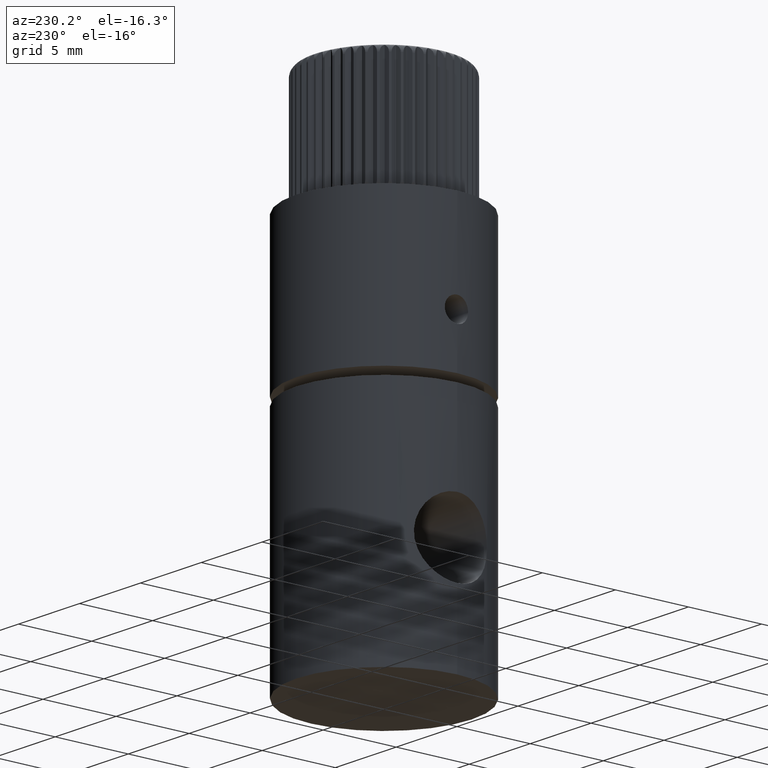
[diagram: clean part render]
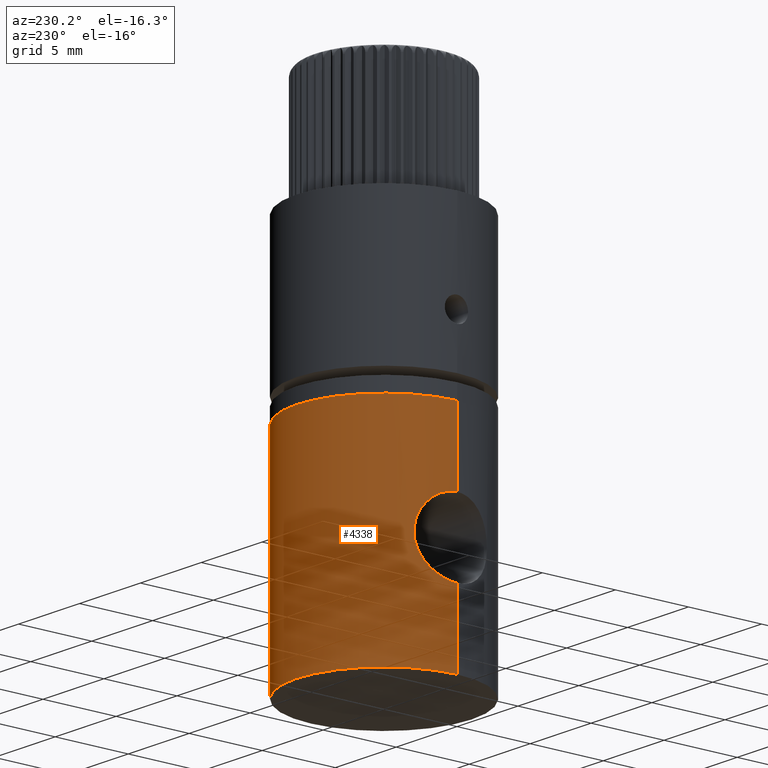
[diagram: same view with one face highlighted and labeled with its STEP entity id]
A machine part, auxiliary view. The second image highlights one B-rep face of the part: STEP entity #4338.
In plain terms, the highlighted cylindrical surface (partial cylindrical patch) has radius 6 mm, axis along (-0, -0, -1).
Its self-contained STEP definition (entity closure, byte-faithful):
#7 = CARTESIAN_POINT ( 'NONE',  ( 5.999999999999996400, 7.347880794884115800E-016, -1.657192075796718000 ) ) ;
#36 = CARTESIAN_POINT ( 'NONE',  ( 5.943261248370182800, 0.8281580363227785100, 6.068829633252090800 ) ) ;
#105 = CARTESIAN_POINT ( 'NONE',  ( 5.900657109441390900, 1.090090824528477700, 8.743319249763086300 ) ) ;
#141 = LINE ( 'NONE', #3012, #6430 ) ;
#252 = CARTESIAN_POINT ( 'NONE',  ( 5.999999999999994700, 7.347880794884114800E-016, 0.0000000000000000000 ) ) ;
#290 = CARTESIAN_POINT ( 'NONE',  ( 5.999999999999998200, 7.347880794884117800E-016, 15.00000000000000000 ) ) ;
#313 = B_SPLINE_CURVE_WITH_KNOTS ( 'NONE', 3,
 ( #3463, #4303, #4339, #1024, #1758, #912, #36, #6938, #2690, #2729, #878, #9519, #9435, #2770, #5282, #4383, #6021, #7805, #5245, #105, #4463, #2624, #6065, #6902, #1796, #10242, #8597, #3572 ),
 .UNSPECIFIED., .F., .F.,
 ( 4, 2, 2, 2, 2, 2, 2, 2, 2, 2, 2, 2, 2, 4 ),
 ( 3.834232119753134800E-019, 0.0003239837674726284400, 0.0006479675349452565500, 0.0009719513024178846600, 0.001295935069890512700, 0.001943902604835770600, 0.002591870139781028400, 0.002915853907253658400, 0.003239837674726286700, 0.003887805209671537300, 0.004211788977144161800, 0.004535772744616787900, 0.004859756512089413200, 0.005183740279562038500 ),
 .UNSPECIFIED. ) ;
#373 = ORIENTED_EDGE ( 'NONE', *, *, #5471, .T. ) ;
#435 = CARTESIAN_POINT ( 'NONE',  ( -5.491053255503498300, 2.418593444814171300, 6.846204008123888400 ) ) ;
#527 = LINE ( 'NONE', #7, #11069 ) ;
#626 = VECTOR ( 'NONE', #3232, 1000.000000000000000 ) ;
#674 = EDGE_CURVE ( 'NONE', #10750, #1963, #141, .T. ) ;
#711 = DIRECTION ( 'NONE',  ( -0.0000000000000000000, -0.0000000000000000000, -1.000000000000000000 ) ) ;
#866 = EDGE_LOOP ( 'NONE', ( #6188, #9746, #8705, #373, #2414, #5755, #9364, #6336 ) ) ;
#871 = VERTEX_POINT ( 'NONE', #7406 ) ;
#878 = CARTESIAN_POINT ( 'NONE',  ( 5.824969940036790000, 1.441176502100289800, 6.668351374473306100 ) ) ;
#912 = CARTESIAN_POINT ( 'NONE',  ( 5.955832276222059500, 0.7335766382202592000, 6.018092586818806200 ) ) ;
#1024 = CARTESIAN_POINT ( 'NONE',  ( 5.985590844583691200, 0.4288724603518551100, 5.903061823404143200 ) ) ;
#1045 = AXIS2_PLACEMENT_3D ( 'NONE', #1111, #3682, #9605 ) ;
#1111 = CARTESIAN_POINT ( 'NONE',  ( 0.0000000000000000000, 0.0000000000000000000, 0.0000000000000000000 ) ) ;
#1236 = VERTEX_POINT ( 'NONE', #8109 ) ;
#1317 = CARTESIAN_POINT ( 'NONE',  ( -5.698635342894789300, 1.881449780072504500, 5.845840146213110000 ) ) ;
#1440 = CIRCLE ( 'NONE', #7987, 5.999999999999998200 ) ;
#1758 = CARTESIAN_POINT ( 'NONE',  ( 5.977034848645474500, 0.5339730374359339400, 5.935053655656094700 ) ) ;
#1796 = CARTESIAN_POINT ( 'NONE',  ( 5.985495101559694200, 0.4303527999362896100, 9.096581482054336500 ) ) ;
#1876 = CARTESIAN_POINT ( 'NONE',  ( 5.999999999999996400, 7.347832891494713500E-016, 9.149999999999998600 ) ) ;
#1963 = VERTEX_POINT ( 'NONE', #1876 ) ;
#1980 = CARTESIAN_POINT ( 'NONE',  ( 0.0000000000000000000, 0.0000000000000000000, -1.657192075796718000 ) ) ;
#2081 = CARTESIAN_POINT ( 'NONE',  ( -5.993025678387394500, 0.3313286651165026600, 9.983390551656807300 ) ) ;
#2115 = CARTESIAN_POINT ( 'NONE',  ( -5.512296490036577600, 2.370510600221101600, 6.688919642907562100 ) ) ;
#2352 = AXIS2_PLACEMENT_3D ( 'NONE', #1980, #7839, #8789 ) ;
#2384 = LINE ( 'NONE', #8314, #626 ) ;
#2398 = LINE ( 'NONE', #5442, #4242 ) ;
#2414 = ORIENTED_EDGE ( 'NONE', *, *, #3271, .F. ) ;
#2624 = CARTESIAN_POINT ( 'NONE',  ( 5.943139395617381900, 0.8289971575666566000, 8.930657834807252700 ) ) ;
#2690 = CARTESIAN_POINT ( 'NONE',  ( 5.900400101234462000, 1.091435770856907400, 6.257932382857776000 ) ) ;
#2729 = CARTESIAN_POINT ( 'NONE',  ( 5.855373621616120500, 1.318489035789405200, 6.485139077340821100 ) ) ;
#2770 = CARTESIAN_POINT ( 'NONE',  ( 5.768651871271811300, 1.650047147960658400, 7.607488069543296500 ) ) ;
#2942 = CARTESIAN_POINT ( 'NONE',  ( -5.868189014291121300, 1.258442380232151200, 9.666296504189473300 ) ) ;
#2979 = CARTESIAN_POINT ( 'NONE',  ( -5.803710641115049600, 1.528475880810605100, 5.514995588957928500 ) ) ;
#3012 = CARTESIAN_POINT ( 'NONE',  ( 5.999999999999996400, 7.347880794884115800E-016, -1.657192075796718000 ) ) ;
#3017 = CARTESIAN_POINT ( 'NONE',  ( -5.999999999999998200, 0.1672401054569761000, 10.00000000000000200 ) ) ;
#3018 = EDGE_CURVE ( 'NONE', #871, #7685, #9778, .T. ) ;
#3222 = FACE_OUTER_BOUND ( 'NONE', #866, .T. ) ;
#3232 = DIRECTION ( 'NONE',  ( -0.0000000000000000000, -0.0000000000000000000, -1.000000000000000000 ) ) ;
#3271 = EDGE_CURVE ( 'NONE', #6894, #10710, #3910, .T. ) ;
#3463 = CARTESIAN_POINT ( 'NONE',  ( 5.999999999999996400, -3.948237423828692300E-016, 5.850000000000002300 ) ) ;
#3572 = CARTESIAN_POINT ( 'NONE',  ( 5.999999999999996400, 7.347832891494713500E-016, 9.149999999999998600 ) ) ;
#3682 = DIRECTION ( 'NONE',  ( -0.0000000000000000000, -0.0000000000000000000, -1.000000000000000000 ) ) ;
#3773 = CARTESIAN_POINT ( 'NONE',  ( -5.512683608006680600, 2.369582593462938200, 8.313322364475594000 ) ) ;
#3847 = DIRECTION ( 'NONE',  ( -0.0000000000000000000, -0.0000000000000000000, -1.000000000000000000 ) ) ;
#3910 = CIRCLE ( 'NONE', #1045, 5.999999999999994700 ) ;
#4122 = VERTEX_POINT ( 'NONE', #9190 ) ;
#4224 = EDGE_CURVE ( 'NONE', #1236, #1963, #313, .T. ) ;
#4242 = VECTOR ( 'NONE', #711, 1000.000000000000000 ) ;
#4303 = CARTESIAN_POINT ( 'NONE',  ( 5.999999999999996400, 0.1095883596840380000, 5.850000000000000500 ) ) ;
#4338 = ADVANCED_FACE ( 'NONE', ( #3222 ), #6788, .T. ) ;
#4339 = CARTESIAN_POINT ( 'NONE',  ( 5.997002164909986300, 0.2172426755435081200, 5.860808508123517100 ) ) ;
#4383 = CARTESIAN_POINT ( 'NONE',  ( 5.783663370278000000, 1.596785082358821200, 7.929498778551131700 ) ) ;
#4463 = CARTESIAN_POINT ( 'NONE',  ( 5.915522749344098900, 1.007339448738800300, 8.811215223585957500 ) ) ;
#4602 = CARTESIAN_POINT ( 'NONE',  ( 0.0000000000000000000, 0.0000000000000000000, 15.00000000000000000 ) ) ;
#4635 = CARTESIAN_POINT ( 'NONE',  ( -5.999999999999996400, 1.028501702097774900E-020, 5.000000000000000900 ) ) ;
#4706 = CARTESIAN_POINT ( 'NONE',  ( -5.663027394641082100, 1.996726160520223800, 9.038487981714741400 ) ) ;
#4747 = CARTESIAN_POINT ( 'NONE',  ( -5.590935308825295100, 2.181708341974952800, 8.763253123388882000 ) ) ;
#5245 = CARTESIAN_POINT ( 'NONE',  ( 5.855285934645544400, 1.319028407287648100, 8.514508309960303800 ) ) ;
#5282 = CARTESIAN_POINT ( 'NONE',  ( 5.771791056849761700, 1.639180458646404700, 7.717437862416697500 ) ) ;
#5442 = CARTESIAN_POINT ( 'NONE',  ( -5.999999999999996400, 0.0000000000000000000, -1.657192075796718000 ) ) ;
#5445 = CARTESIAN_POINT ( 'NONE',  ( -5.999999999999996400, 0.3294735782554636400, 5.000000000000000000 ) ) ;
#5471 = EDGE_CURVE ( 'NONE', #1236, #10710, #527, .T. ) ;
#5551 = CARTESIAN_POINT ( 'NONE',  ( -5.454405485178528900, 2.499892161112044600, 7.666875040158466000 ) ) ;
#5755 = ORIENTED_EDGE ( 'NONE', *, *, #10042, .F. ) ;
#6021 = CARTESIAN_POINT ( 'NONE',  ( 5.792344997632368700, 1.565436386008713700, 8.032620502093815100 ) ) ;
#6065 = CARTESIAN_POINT ( 'NONE',  ( 5.955981705130827000, 0.7323246034372688000, 8.982502913562331800 ) ) ;
#6188 = ORIENTED_EDGE ( 'NONE', *, *, #10867, .T. ) ;
#6336 = ORIENTED_EDGE ( 'NONE', *, *, #6696, .F. ) ;
#6406 = CARTESIAN_POINT ( 'NONE',  ( -5.999999999999996400, -3.796207753093473700E-017, 9.999999999999998200 ) ) ;
#6430 = VECTOR ( 'NONE', #3847, 1000.000000000000000 ) ;
#6446 = CARTESIAN_POINT ( 'NONE',  ( -5.897379805078886200, 1.115495851646001600, 9.743317304753061200 ) ) ;
#6489 = DIRECTION ( 'NONE',  ( -1.000000000000000000, 0.0000000000000000000, 0.0000000000000000000 ) ) ;
#6696 = EDGE_CURVE ( 'NONE', #4122, #871, #2398, .T. ) ;
#6788 = CYLINDRICAL_SURFACE ( 'NONE', #2352, 5.999999999999996400 ) ;
#6894 = VERTEX_POINT ( 'NONE', #7642 ) ;
#6902 = CARTESIAN_POINT ( 'NONE',  ( 5.977093239763080500, 0.5332670998956793300, 9.065164660247994300 ) ) ;
#6938 = CARTESIAN_POINT ( 'NONE',  ( 5.915562439534338200, 1.007135057216912200, 6.188598715759352100 ) ) ;
#7175 = CARTESIAN_POINT ( 'NONE',  ( -5.461976513600096600, 2.483561809314556200, 7.830378954680894000 ) ) ;
#7249 = CARTESIAN_POINT ( 'NONE',  ( -5.769071837164854200, 1.652909006526312800, 5.617451218969522500 ) ) ;
#7285 = CARTESIAN_POINT ( 'NONE',  ( -5.803619680562209600, 1.528829007836515000, 9.484741704410305700 ) ) ;
#7406 = CARTESIAN_POINT ( 'NONE',  ( -5.999999999999996400, -3.796207753093473700E-017, 9.999999999999998200 ) ) ;
#7642 = CARTESIAN_POINT ( 'NONE',  ( -5.999999999999994700, 0.0000000000000000000, 0.0000000000000000000 ) ) ;
#7685 = VERTEX_POINT ( 'NONE', #10442 ) ;
#7805 = CARTESIAN_POINT ( 'NONE',  ( 5.825130522689566000, 1.440576618780020200, 8.333271694579119400 ) ) ;
#7839 = DIRECTION ( 'NONE',  ( -0.0000000000000000000, -0.0000000000000000000, -1.000000000000000000 ) ) ;
#7944 = CARTESIAN_POINT ( 'NONE',  ( -5.971116335839158600, 0.6621311939231094800, 5.067397270975984500 ) ) ;
#7981 = CARTESIAN_POINT ( 'NONE',  ( -5.966488535110094000, 0.6535671553393448400, 9.918647822616558000 ) ) ;
#7987 = AXIS2_PLACEMENT_3D ( 'NONE', #4602, #10545, #6489 ) ;
#8023 = CARTESIAN_POINT ( 'NONE',  ( -5.662626222328961000, 1.985928082928958500, 5.972807861370669400 ) ) ;
#8109 = CARTESIAN_POINT ( 'NONE',  ( 5.999999999999996400, -3.948237423828692300E-016, 5.850000000000002300 ) ) ;
#8314 = CARTESIAN_POINT ( 'NONE',  ( -5.999999999999996400, 0.0000000000000000000, -1.657192075796718000 ) ) ;
#8597 = CARTESIAN_POINT ( 'NONE',  ( 5.999999999999993800, 0.1080117356088825400, 9.149999999999995000 ) ) ;
#8705 = ORIENTED_EDGE ( 'NONE', *, *, #4224, .F. ) ;
#8789 = DIRECTION ( 'NONE',  ( -1.000000000000000000, 0.0000000000000000000, 0.0000000000000000000 ) ) ;
#8810 = CARTESIAN_POINT ( 'NONE',  ( -5.565201832296446900, 2.243493183772682400, 6.384692784122994300 ) ) ;
#8884 = CARTESIAN_POINT ( 'NONE',  ( -5.596081245774402500, 2.166361182966829400, 6.241784834063874000 ) ) ;
#8918 = CARTESIAN_POINT ( 'NONE',  ( -5.946577916524693900, 0.8134068127896105800, 9.869635601047432900 ) ) ;
#9190 = CARTESIAN_POINT ( 'NONE',  ( -5.999999999999998200, 0.0000000000000000000, 15.00000000000000000 ) ) ;
#9364 = ORIENTED_EDGE ( 'NONE', *, *, #3018, .F. ) ;
#9435 = CARTESIAN_POINT ( 'NONE',  ( 5.768692463477126600, 1.649905231068079500, 7.282859882004285800 ) ) ;
#9519 = CARTESIAN_POINT ( 'NONE',  ( 5.781682972210236700, 1.606053087974508500, 7.065002729716598000 ) ) ;
#9605 = DIRECTION ( 'NONE',  ( -1.000000000000000000, 0.0000000000000000000, 0.0000000000000000000 ) ) ;
#9655 = CARTESIAN_POINT ( 'NONE',  ( -5.897869239595885400, 1.112789484202404400, 5.255408054310577400 ) ) ;
#9696 = CARTESIAN_POINT ( 'NONE',  ( -5.454307112671460600, 2.500106784638723900, 7.336371880103818000 ) ) ;
#9746 = ORIENTED_EDGE ( 'NONE', *, *, #674, .T. ) ;
#9778 = B_SPLINE_CURVE_WITH_KNOTS ( 'NONE', 3,
 ( #6406, #3017, #2081, #7981, #8918, #6446, #2942, #7285, #9782, #4706, #4747, #3773, #10654, #7175, #5551, #9696, #10616, #435, #2115, #8810, #8884, #8023, #1317, #7249, #2979, #10689, #9655, #7944, #5445, #4635 ),
 .UNSPECIFIED., .F., .F.,
 ( 4, 2, 2, 2, 2, 2, 2, 2, 2, 2, 2, 2, 2, 2, 4 ),
 ( 3.683458209943862600E-020, 0.0004942134665145543800, 0.0009884269330291087700, 0.001482640399543663000, 0.001976853866058217500, 0.002965280799087326900, 0.003459494265601881200, 0.003953707732116435900, 0.004447921198630992400, 0.004942134665145549700, 0.005436348131660107000, 0.005930561598174663400, 0.006424775064689220800, 0.006918988531203777200, 0.007907415464232892700 ),
 .UNSPECIFIED. ) ;
#9782 = CARTESIAN_POINT ( 'NONE',  ( -5.768422958052131100, 1.655142058905327000, 9.380550430682271600 ) ) ;
#10042 = EDGE_CURVE ( 'NONE', #7685, #6894, #2384, .T. ) ;
#10108 = DIRECTION ( 'NONE',  ( -0.0000000000000000000, -0.0000000000000000000, -1.000000000000000000 ) ) ;
#10242 = CARTESIAN_POINT ( 'NONE',  ( 5.997001779899272300, 0.2175426282204411800, 9.139192229776227800 ) ) ;
#10442 = CARTESIAN_POINT ( 'NONE',  ( -5.999999999999996400, 1.028501702097774900E-020, 5.000000000000000900 ) ) ;
#10545 = DIRECTION ( 'NONE',  ( -0.0000000000000000000, -0.0000000000000000000, -1.000000000000000000 ) ) ;
#10616 = CARTESIAN_POINT ( 'NONE',  ( -5.462051476449278000, 2.483395613810240700, 7.168654748639110800 ) ) ;
#10654 = CARTESIAN_POINT ( 'NONE',  ( -5.491054996713697500, 2.418590853962362600, 8.153947853816674800 ) ) ;
#10689 = CARTESIAN_POINT ( 'NONE',  ( -5.868227615580744700, 1.258252906115199900, 5.333601916930108500 ) ) ;
#10710 = VERTEX_POINT ( 'NONE', #252 ) ;
#10750 = VERTEX_POINT ( 'NONE', #290 ) ;
#10867 = EDGE_CURVE ( 'NONE', #4122, #10750, #1440, .T. ) ;
#11069 = VECTOR ( 'NONE', #10108, 1000.000000000000000 ) ;